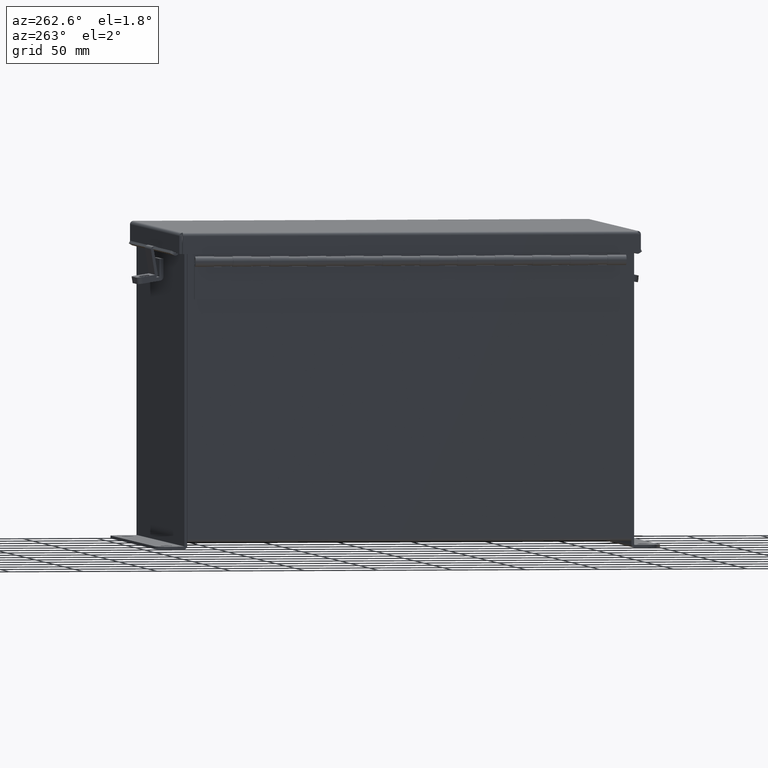
[diagram: clean part render]
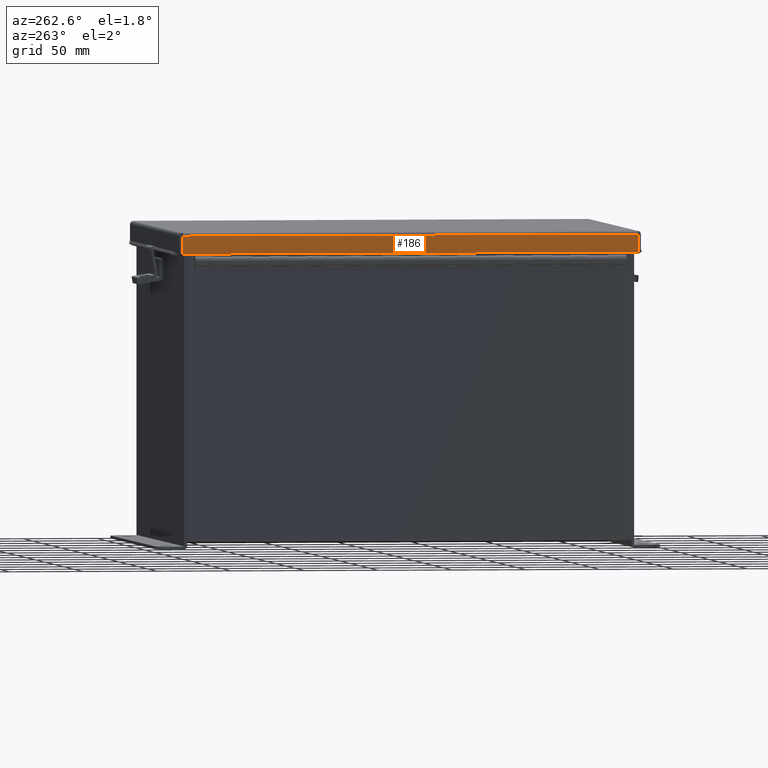
[diagram: same view with one face highlighted and labeled with its STEP entity id]
A machine part, auxiliary view. The second image highlights one B-rep face of the part: STEP entity #186.
In plain terms, the highlighted planar face has unit normal (1, -0, 0).
Its self-contained STEP definition (entity closure, byte-faithful):
#158 = FACE_OUTER_BOUND ( 'NONE', #2228, .T. ) ;
#186 = ADVANCED_FACE ( 'NONE', ( #158 ), #8524, .F. ) ;
#299 = ORIENTED_EDGE ( 'NONE', *, *, #17143, .T. ) ;
#467 = VERTEX_POINT ( 'NONE', #6372 ) ;
#629 = CARTESIAN_POINT ( 'NONE',  ( 5.156250000000000900, 6.074478932188137400, 0.01299999999999978100 ) ) ;
#2228 = EDGE_LOOP ( 'NONE', ( #4387, #299, #4192, #2652 ) ) ;
#2652 = ORIENTED_EDGE ( 'NONE', *, *, #12749, .F. ) ;
#3136 = CARTESIAN_POINT ( 'NONE',  ( 5.156250000000000900, -6.156249999999998200, 0.01299999999999978100 ) ) ;
#3227 = DIRECTION ( 'NONE',  ( 4.484872552701437800E-015, 0.0000000000000000000, 1.000000000000000000 ) ) ;
#3762 = CARTESIAN_POINT ( 'NONE',  ( 5.156250000000003600, 0.0000000000000000000, 0.4872999999999997300 ) ) ;
#4083 = CARTESIAN_POINT ( 'NONE',  ( 5.156250000000000900, 0.0000000000000000000, -2.338593775587838000E-014 ) ) ;
#4192 = ORIENTED_EDGE ( 'NONE', *, *, #10269, .T. ) ;
#4387 = ORIENTED_EDGE ( 'NONE', *, *, #12529, .F. ) ;
#4521 = DIRECTION ( 'NONE',  ( -0.0000000000000000000, -1.000000000000000000, -0.0000000000000000000 ) ) ;
#6176 = VECTOR ( 'NONE', #4521, 39.37007874015748100 ) ;
#6245 = CARTESIAN_POINT ( 'NONE',  ( 5.156250000000000900, -6.074478932188134700, -3.350199796867981300E-016 ) ) ;
#6372 = CARTESIAN_POINT ( 'NONE',  ( 5.156250000000003600, 6.074478932188137400, 0.4872999999999997300 ) ) ;
#6522 = DIRECTION ( 'NONE',  ( 0.0000000000000000000, -1.000000000000000000, 0.0000000000000000000 ) ) ;
#8023 = DIRECTION ( 'NONE',  ( -1.000000000000000000, 0.0000000000000000000, 4.484872552701437800E-015 ) ) ;
#8440 = DIRECTION ( 'NONE',  ( 4.484872552701437800E-015, 0.0000000000000000000, 1.000000000000000000 ) ) ;
#8524 = PLANE ( 'NONE',  #10393 ) ;
#10074 = CARTESIAN_POINT ( 'NONE',  ( 5.156250000000000900, 6.074478932188137400, -2.338593775587838000E-014 ) ) ;
#10237 = LINE ( 'NONE', #3136, #6176 ) ;
#10269 = EDGE_CURVE ( 'NONE', #467, #17402, #16004, .T. ) ;
#10393 = AXIS2_PLACEMENT_3D ( 'NONE', #4083, #8023, #8440 ) ;
#12529 = EDGE_CURVE ( 'NONE', #13811, #16833, #10237, .T. ) ;
#12749 = EDGE_CURVE ( 'NONE', #16833, #17402, #14054, .T. ) ;
#13368 = CARTESIAN_POINT ( 'NONE',  ( 5.156250000000000900, -6.074478932188134700, 0.01299999999999977400 ) ) ;
#13811 = VERTEX_POINT ( 'NONE', #629 ) ;
#14054 = LINE ( 'NONE', #6245, #17294 ) ;
#14468 = DIRECTION ( 'NONE',  ( 4.484872552701437800E-015, -0.0000000000000000000, 1.000000000000000000 ) ) ;
#15114 = VECTOR ( 'NONE', #3227, 39.37007874015748100 ) ;
#15572 = VECTOR ( 'NONE', #6522, 39.37007874015748100 ) ;
#15575 = LINE ( 'NONE', #10074, #15114 ) ;
#16004 = LINE ( 'NONE', #3762, #15572 ) ;
#16833 = VERTEX_POINT ( 'NONE', #13368 ) ;
#16967 = CARTESIAN_POINT ( 'NONE',  ( 5.156250000000003600, -6.074478932188134700, 0.4872999999999997300 ) ) ;
#17143 = EDGE_CURVE ( 'NONE', #13811, #467, #15575, .T. ) ;
#17294 = VECTOR ( 'NONE', #14468, 39.37007874015748100 ) ;
#17402 = VERTEX_POINT ( 'NONE', #16967 ) ;